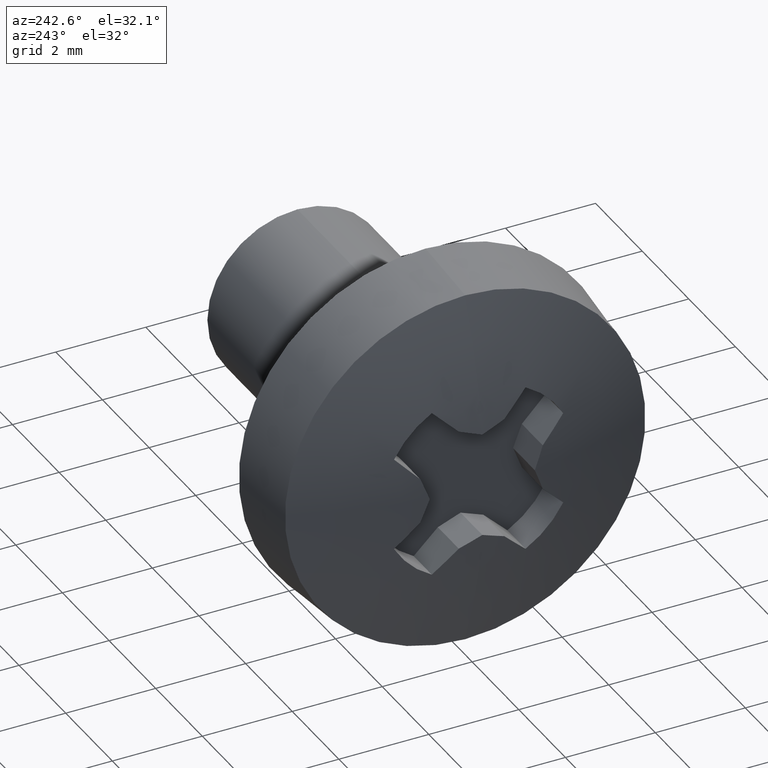
[diagram: clean part render]
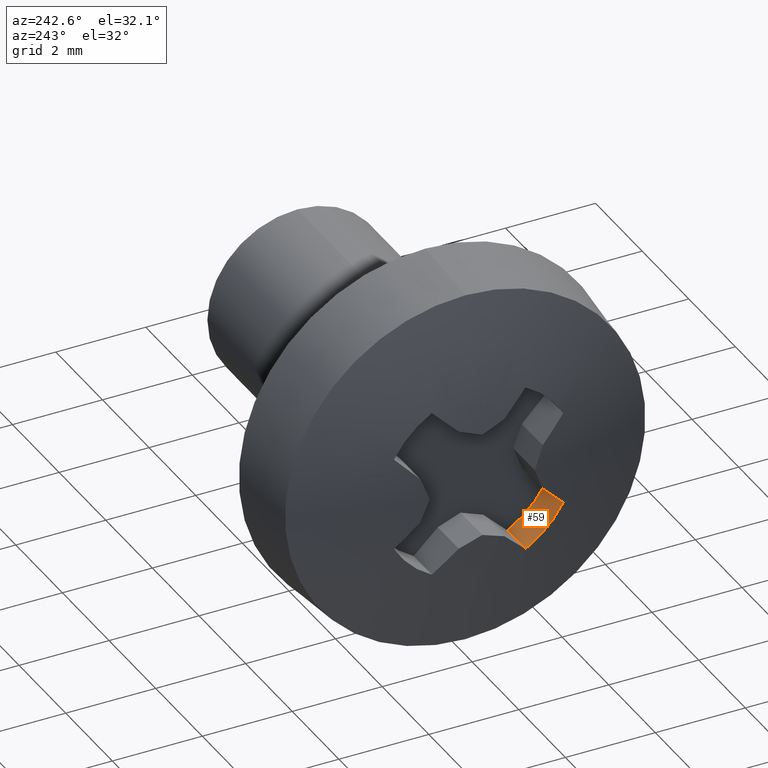
[diagram: same view with one face highlighted and labeled with its STEP entity id]
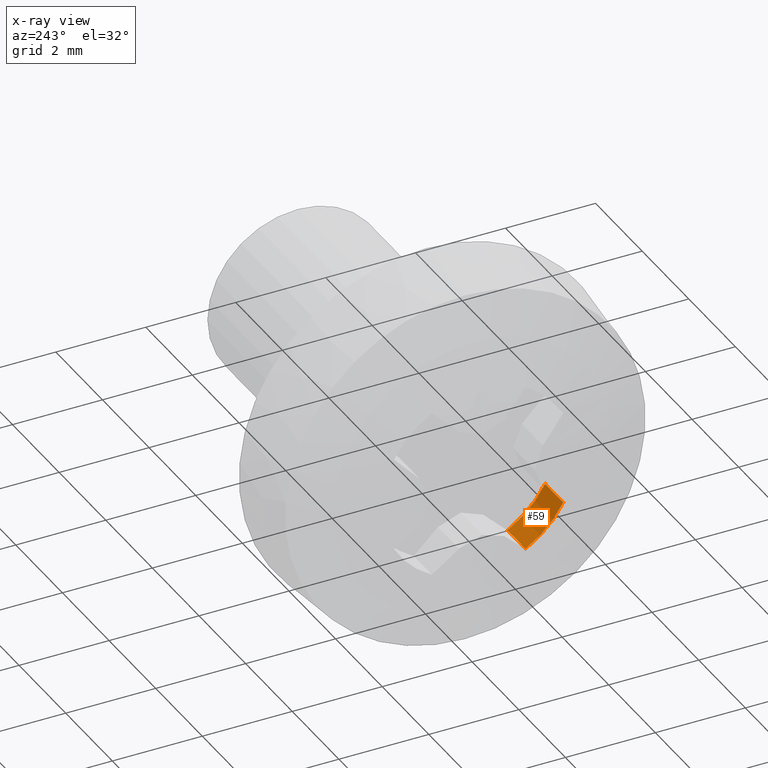
[diagram: x-ray of the same camera — body ghosted, the highlighted face saturated]
A machine part, auxiliary view. The second image highlights one B-rep face of the part: STEP entity #59.
The next image is the same camera in x-ray: the body ghosted, the highlighted face saturated — about 0% of this face is hidden behind the body in this view.
In plain terms, the highlighted cylindrical surface (partial cylindrical patch) has radius 2.15 mm, axis along (-1, 0, 0).
Its self-contained STEP definition (entity closure, byte-faithful):
#24 = DIRECTION ( 'NONE',  ( 0.0000000000000000000, 0.0000000000000000000, -1.000000000000000000 ) ) ;
#27 = DIRECTION ( 'NONE',  ( -1.000000000000000000, 0.0000000000000000000, 0.0000000000000000000 ) ) ;
#46 = VERTEX_POINT ( 'NONE', #915 ) ;
#59 = ADVANCED_FACE ( 'NONE', ( #1014 ), #737, .F. ) ;
#61 = AXIS2_PLACEMENT_3D ( 'NONE', #924, #1164, #24 ) ;
#70 = VERTEX_POINT ( 'NONE', #357 ) ;
#148 = ORIENTED_EDGE ( 'NONE', *, *, #471, .F. ) ;
#205 = LINE ( 'NONE', #404, #1196 ) ;
#211 = ORIENTED_EDGE ( 'NONE', *, *, #242, .F. ) ;
#240 = DIRECTION ( 'NONE',  ( 0.0000000000000000000, 0.0000000000000000000, 1.000000000000000000 ) ) ;
#242 = EDGE_CURVE ( 'NONE', #46, #270, #339, .T. ) ;
#256 = CARTESIAN_POINT ( 'NONE',  ( -1.500000000000000000, 0.0000000000000000000, 0.0000000000000000000 ) ) ;
#270 = VERTEX_POINT ( 'NONE', #643 ) ;
#339 = LINE ( 'NONE', #494, #1083 ) ;
#357 = CARTESIAN_POINT ( 'NONE',  ( -1.500000000000000000, -1.041578565200361300, -1.880854617592025500 ) ) ;
#371 = DIRECTION ( 'NONE',  ( 0.0000000000000000000, 0.0000000000000000000, 1.000000000000000000 ) ) ;
#404 = CARTESIAN_POINT ( 'NONE',  ( -1.500000000000000000, -1.041578565200361300, -1.880854617592025500 ) ) ;
#441 = CIRCLE ( 'NONE', #61, 2.150000000000485700 ) ;
#471 = EDGE_CURVE ( 'NONE', #270, #561, #441, .T. ) ;
#494 = CARTESIAN_POINT ( 'NONE',  ( -1.500000000000000000, -1.880854617592026000, -1.041578565200360600 ) ) ;
#496 = DIRECTION ( 'NONE',  ( 1.000000000000000000, 0.0000000000000000000, 0.0000000000000000000 ) ) ;
#561 = VERTEX_POINT ( 'NONE', #709 ) ;
#575 = DIRECTION ( 'NONE',  ( -1.000000000000000000, 0.0000000000000000000, 0.0000000000000000000 ) ) ;
#594 = EDGE_CURVE ( 'NONE', #46, #70, #847, .T. ) ;
#611 = EDGE_LOOP ( 'NONE', ( #211, #661, #677, #148 ) ) ;
#643 = CARTESIAN_POINT ( 'NONE',  ( -2.276572706260289200, -1.880854617592026000, -1.041578565200360600 ) ) ;
#661 = ORIENTED_EDGE ( 'NONE', *, *, #594, .T. ) ;
#677 = ORIENTED_EDGE ( 'NONE', *, *, #1069, .T. ) ;
#709 = CARTESIAN_POINT ( 'NONE',  ( -2.276572706260284700, -1.041578565200361300, -1.880854617592025500 ) ) ;
#737 = CYLINDRICAL_SURFACE ( 'NONE', #1085, 2.150000000000485700 ) ;
#772 = CARTESIAN_POINT ( 'NONE',  ( -1.500000000000000000, 0.0000000000000000000, 0.0000000000000000000 ) ) ;
#847 = CIRCLE ( 'NONE', #1080, 2.150000000000485700 ) ;
#915 = CARTESIAN_POINT ( 'NONE',  ( -1.500000000000000000, -1.880854617592026000, -1.041578565200360600 ) ) ;
#924 = CARTESIAN_POINT ( 'NONE',  ( -2.276572706260289200, 0.0000000000000000000, 0.0000000000000000000 ) ) ;
#1014 = FACE_OUTER_BOUND ( 'NONE', #611, .T. ) ;
#1069 = EDGE_CURVE ( 'NONE', #70, #561, #205, .T. ) ;
#1072 = DIRECTION ( 'NONE',  ( -1.000000000000000000, 0.0000000000000000000, 0.0000000000000000000 ) ) ;
#1080 = AXIS2_PLACEMENT_3D ( 'NONE', #256, #496, #240 ) ;
#1083 = VECTOR ( 'NONE', #1072, 1000.000000000000000 ) ;
#1085 = AXIS2_PLACEMENT_3D ( 'NONE', #772, #575, #371 ) ;
#1164 = DIRECTION ( 'NONE',  ( 1.000000000000000000, -0.0000000000000000000, -0.0000000000000000000 ) ) ;
#1196 = VECTOR ( 'NONE', #27, 1000.000000000000000 ) ;